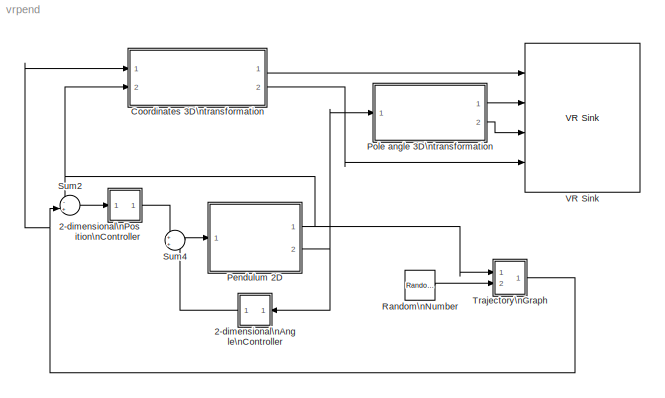
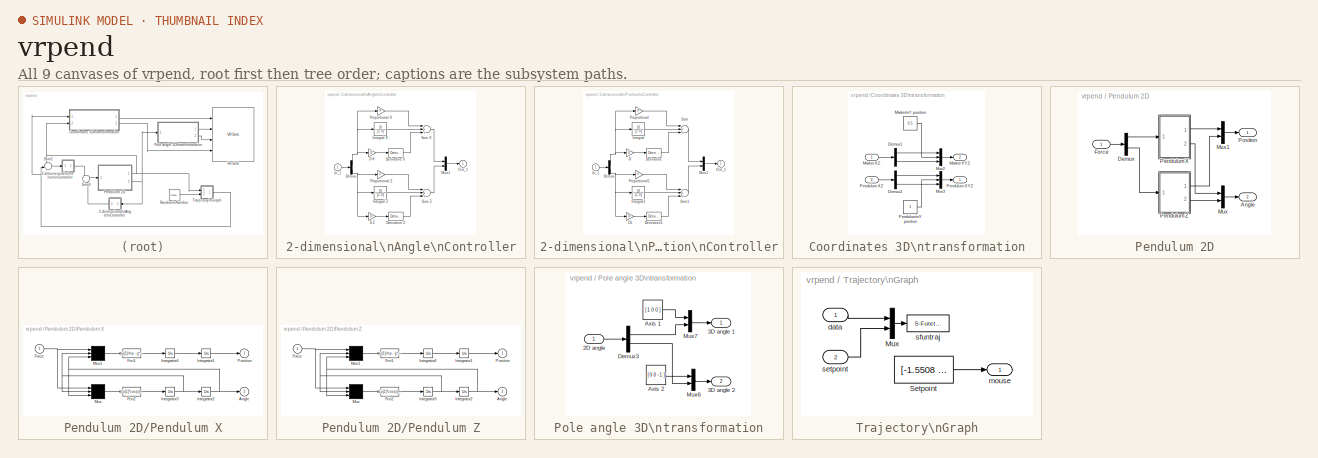
[diagram: thumbnail index - all 9 canvases of the model, root first then tree order]
MODEL vrpend
KIND model
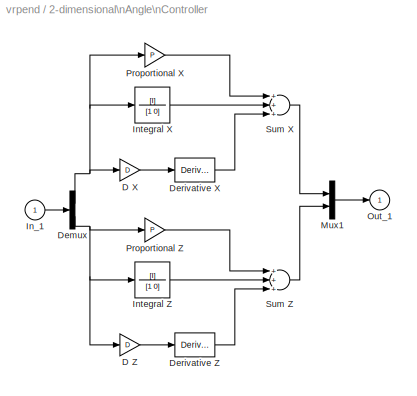
BLOCK [SubSystem] 2-dimensional\nAngle\nController
  EnableExecutionContextPropagation = on
  MaskCallbackString = ||
  MaskDescription = Enter expressions for proportional, integral, and derivative terms.\nP+I/s+Ds
  MaskDisplay = disp('PID')
  MaskEnableString = on,on,on
  MaskHelp = This block implements a PID controller where parameters are entered for the Proportional, Integral and Derivative terms. Unmask this block to see how it works. The derivative term is implemented using a true derivative block.
  MaskIconFrame = on
  MaskIconOpaque = on
  MaskIconRotate = none
  MaskIconUnits = autoscale
  MaskPromptString = Proportional:|Integral:|Derivative:
  MaskStyleString = edit,edit,edit
  MaskTabNameString = ,,
  MaskToolTipString = on,on,on
  MaskTunableValueString = on,on,on
  MaskType = PID Controller
  MaskValueString = 41.6|38.3|27.3
  MaskVarAliasString = ,,
  MaskVariables = P=@1;I=@2;D=@3;
  MaskVisibilityString = on,on,on
  MinAlgLoopOccurrences = off
  Ports = [1, 1]
  TreatAsAtomicUnit = off
BLOCK [Gain] 2-dimensional\nAngle\nController/D X
  Gain = D
BLOCK [Gain] 2-dimensional\nAngle\nController/D Z
  Gain = D
BLOCK [Demux] 2-dimensional\nAngle\nController/Demux
  Outputs = 2
  Ports = [1, 2]
BLOCK [Derivative] 2-dimensional\nAngle\nController/Derivative X
BLOCK [Derivative] 2-dimensional\nAngle\nController/Derivative Z
BLOCK [Inport] 2-dimensional\nAngle\nController/In_1
  IconDisplay = Port number
  LatchInput = off
BLOCK [TransferFcn] 2-dimensional\nAngle\nController/Integral X
  Denominator = [1 0]
  Numerator = [I]
BLOCK [TransferFcn] 2-dimensional\nAngle\nController/Integral Z
  Denominator = [1 0]
  Numerator = [I]
BLOCK [Mux] 2-dimensional\nAngle\nController/Mux1
  DisplayOption = bar
  Inputs = 2
  Ports = [2, 1]
BLOCK [Outport] 2-dimensional\nAngle\nController/Out_1
  IconDisplay = Port number
  InitialOutput = 0
BLOCK [Gain] 2-dimensional\nAngle\nController/Proportional X
  Gain = P
BLOCK [Gain] 2-dimensional\nAngle\nController/Proportional Z
  Gain = P
BLOCK [Sum] 2-dimensional\nAngle\nController/Sum X
  Inputs = +++
  Ports = [3, 1]
BLOCK [Sum] 2-dimensional\nAngle\nController/Sum Z
  Inputs = +++
  Ports = [3, 1]
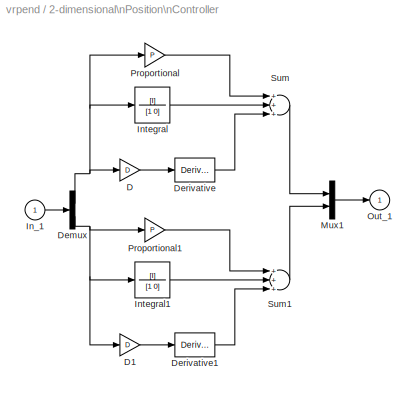
BLOCK [SubSystem] 2-dimensional\nPosition\nController
  EnableExecutionContextPropagation = on
  MaskCallbackString = ||
  MaskDescription = Enter expressions for proportional, integral, and derivative terms.\nP+I/s+Ds
  MaskDisplay = disp('PID')
  MaskEnableString = on,on,on
  MaskHelp = This block implements a PID controller where parameters are entered for the Proportional, Integral and Derivative terms. Unmask this block to see how it works. The derivative term is implemented using a true derivative block.
  MaskIconFrame = on
  MaskIconOpaque = on
  MaskIconRotate = none
  MaskIconUnits = autoscale
  MaskPromptString = Proportional:|Integral:|Derivative:
  MaskStyleString = edit,edit,edit
  MaskTabNameString = ,,
  MaskToolTipString = on,on,on
  MaskTunableValueString = on,on,on
  MaskType = PID Controller
  MaskValueString = -1.681|-0.0133|-0.325
  MaskVarAliasString = ,,
  MaskVariables = P=@1;I=@2;D=@3;
  MaskVisibilityString = on,on,on
  MinAlgLoopOccurrences = off
  Ports = [1, 1]
  TreatAsAtomicUnit = off
BLOCK [Gain] 2-dimensional\nPosition\nController/D
  Gain = D
BLOCK [Gain] 2-dimensional\nPosition\nController/D1
  Gain = D
BLOCK [Demux] 2-dimensional\nPosition\nController/Demux
  Outputs = 2
  Ports = [1, 2]
BLOCK [Derivative] 2-dimensional\nPosition\nController/Derivative
BLOCK [Derivative] 2-dimensional\nPosition\nController/Derivative1
BLOCK [Inport] 2-dimensional\nPosition\nController/In_1
  IconDisplay = Port number
  LatchInput = off
BLOCK [TransferFcn] 2-dimensional\nPosition\nController/Integral
  Denominator = [1 0]
  Numerator = [I]
BLOCK [TransferFcn] 2-dimensional\nPosition\nController/Integral1
  Denominator = [1 0]
  Numerator = [I]
BLOCK [Mux] 2-dimensional\nPosition\nController/Mux1
  DisplayOption = bar
  Inputs = 2
  Ports = [2, 1]
BLOCK [Outport] 2-dimensional\nPosition\nController/Out_1
  IconDisplay = Port number
  InitialOutput = 0
BLOCK [Gain] 2-dimensional\nPosition\nController/Proportional
  Gain = P
BLOCK [Gain] 2-dimensional\nPosition\nController/Proportional1
  Gain = P
BLOCK [Sum] 2-dimensional\nPosition\nController/Sum
  Inputs = +++
  Ports = [3, 1]
BLOCK [Sum] 2-dimensional\nPosition\nController/Sum1
  Inputs = +++
  Ports = [3, 1]
BLOCK [SubSystem] Coordinates 3D\ntransformation
  EnableExecutionContextPropagation = on
  MinAlgLoopOccurrences = off
  Ports = [2, 2]
  TreatAsAtomicUnit = off
BLOCK [Demux] Coordinates 3D\ntransformation/Demux1
  Outputs = 2
  Ports = [1, 2]
BLOCK [Demux] Coordinates 3D\ntransformation/Demux2
  Outputs = 2
  Ports = [1, 2]
BLOCK [Outport] Coordinates 3D\ntransformation/Marker XYZ
  IconDisplay = Port number
  Port = 2
BLOCK [Inport] Coordinates 3D\ntransformation/Marker XZ
  IconDisplay = Port number
  LatchInput = off
BLOCK [Constant] Coordinates 3D\ntransformation/Marker\nY position
  Value = 0.5
BLOCK [Mux] Coordinates 3D\ntransformation/Mux2
  DisplayOption = bar
  Inputs = 3
  Ports = [3, 1]
BLOCK [Mux] Coordinates 3D\ntransformation/Mux3
  DisplayOption = bar
  Inputs = 3
  Ports = [3, 1]
BLOCK [Outport] Coordinates 3D\ntransformation/Pendulum XYZ
  IconDisplay = Port number
BLOCK [Inport] Coordinates 3D\ntransformation/Pendulum XZ
  IconDisplay = Port number
  LatchInput = off
  Port = 2
BLOCK [Constant] Coordinates 3D\ntransformation/Pendulum\nY position
BLOCK [SubSystem] Pendulum 2D
  EnableExecutionContextPropagation = on
  MaskCallbackString = |||
  MaskDescription = Look under mask to see dynamics
  MaskDisplay = plot([-10 10],[0 0],[-2 -2 2 2],[0 1 1 0],[0 -2],[1 5])
  MaskEnableString = on,on,on,on
  MaskHelp = Nonlinear dynamics of inverted pendulum.
  MaskIconFrame = on
  MaskIconOpaque = off
  MaskIconRotate = none
  MaskIconUnits = autoscale
  MaskPromptString = Mass of cart (kg):|Mass of pendulum (kg):|Distance to pendulum center of mass(m):|Acceleration of gravity (m/s^2):
  MaskStyleString = edit,edit,edit,edit
  MaskTabNameString = ,,,
  MaskToolTipString = on,on,on,on
  MaskTunableValueString = on,on,on,on
  MaskType = Inverted pendulum
  MaskValueString = 0.5|1|0.5|9.80665
  MaskVarAliasString = ,,,
  MaskVariables = mc=@1;mp=@2;l=@3;g=@4;
  MaskVisibilityString = on,on,on,on
  MinAlgLoopOccurrences = off
  Ports = [1, 2]
  TreatAsAtomicUnit = off
BLOCK [Outport] Pendulum 2D/Angle
  IconDisplay = Port number
  Port = 2
BLOCK [Demux] Pendulum 2D/Demux
  Outputs = 2
  Ports = [1, 2]
BLOCK [Inport] Pendulum 2D/Force
  IconDisplay = Port number
  LatchInput = off
BLOCK [Mux] Pendulum 2D/Mux
  DisplayOption = bar
  Inputs = 2
  Ports = [2, 1]
BLOCK [Mux] Pendulum 2D/Mux1
  DisplayOption = bar
  Inputs = 2
  Ports = [2, 1]
BLOCK [SubSystem] Pendulum 2D/Pendulum X
  EnableExecutionContextPropagation = on
  MaskCallbackString = |||
  MaskDescription = Look under mask to see dynamics
  MaskEnableString = on,on,on,on
  MaskHelp = Nonlinear dynamics of inverted pendulum.
  MaskIconFrame = on
  MaskIconOpaque = on
  MaskIconRotate = none
  MaskIconUnits = autoscale
  MaskPromptString = Mass of cart (kg):|Mass of pendulum (kg):|Distance to pendulum center of mass(m):|Acceleration of gravity (m/s^2):
  MaskStyleString = edit,edit,edit,edit
  MaskTabNameString = ,,,
  MaskToolTipString = on,on,on,on
  MaskTunableValueString = on,on,on,on
  MaskType = Inverted pendulum
  MaskValueString = mc|mp|l|g
  MaskVarAliasString = ,,,
  MaskVariables = mc=@1;mp=@2;l=@3;g=@4;
  MaskVisibilityString = on,on,on,on
  MinAlgLoopOccurrences = off
  Ports = [1, 2]
  TreatAsAtomicUnit = off
BLOCK [Outport] Pendulum 2D/Pendulum X/Angle
  IconDisplay = Port number
  InitialOutput = 0
  Port = 2
BLOCK [Fcn] Pendulum 2D/Pendulum X/Fcn1
  Expr = (u[1]/mp - g*sin(u[3])*cos(u[3]) + l*power(u[2],2)*sin(u[3]))/(mc/mp + power(sin(u[3]),2))
BLOCK [Fcn] Pendulum 2D/Pendulum X/Fcn2
  Expr = (-u[1]*cos(u[3])/mp + (mc+mp)*g*sin(u[3])/mp - l*power(u[2],2)*sin(u[3])*cos(u[3]))/(l*(mc/mp + power(sin(u[3]),2)))
BLOCK [Inport] Pendulum 2D/Pendulum X/Force
  IconDisplay = Port number
  LatchInput = off
BLOCK [Integrator] Pendulum 2D/Pendulum X/Integrator1
  LowerSaturationLimit = -Inf
  Ports = [1, 1]
  UpperSaturationLimit = Inf
  ZeroCross = off
BLOCK [Integrator] Pendulum 2D/Pendulum X/Integrator2
  LowerSaturationLimit = -Inf
  Ports = [1, 1]
  UpperSaturationLimit = Inf
  ZeroCross = off
BLOCK [Integrator] Pendulum 2D/Pendulum X/Integrator3
  LowerSaturationLimit = -Inf
  Ports = [1, 1]
  UpperSaturationLimit = Inf
  ZeroCross = off
BLOCK [Integrator] Pendulum 2D/Pendulum X/Integrator4
  LowerSaturationLimit = -Inf
  Ports = [1, 1]
  UpperSaturationLimit = Inf
  ZeroCross = off
BLOCK [Mux] Pendulum 2D/Pendulum X/Mux
  Inputs = 3
  Ports = [3, 1]
BLOCK [Mux] Pendulum 2D/Pendulum X/Mux1
  Inputs = 3
  Ports = [3, 1]
BLOCK [Outport] Pendulum 2D/Pendulum X/Position
  IconDisplay = Port number
  InitialOutput = 0
BLOCK [SubSystem] Pendulum 2D/Pendulum Z
  EnableExecutionContextPropagation = on
  MaskCallbackString = |||
  MaskDescription = Look under mask to see dynamics
  MaskEnableString = on,on,on,on
  MaskHelp = Nonlinear dynamics of inverted pendulum.
  MaskIconFrame = on
  MaskIconOpaque = on
  MaskIconRotate = none
  MaskIconUnits = autoscale
  MaskPromptString = Mass of cart (kg):|Mass of pendulum (kg):|Distance to pendulum center of mass(m):|Acceleration of gravity (m/s^2):
  MaskStyleString = edit,edit,edit,edit
  MaskTabNameString = ,,,
  MaskToolTipString = on,on,on,on
  MaskTunableValueString = on,on,on,on
  MaskType = Inverted pendulum
  MaskValueString = 0.5|1|0.5|9.8
  MaskVarAliasString = ,,,
  MaskVariables = mc=@1;mp=@2;l=@3;g=@4;
  MaskVisibilityString = on,on,on,on
  MinAlgLoopOccurrences = off
  Ports = [1, 2]
  TreatAsAtomicUnit = off
BLOCK [Outport] Pendulum 2D/Pendulum Z/Angle
  IconDisplay = Port number
  InitialOutput = 0
  Port = 2
BLOCK [Fcn] Pendulum 2D/Pendulum Z/Fcn1
  Expr = (u[1]/mp - g*sin(u[3])*cos(u[3]) + l*power(u[2],2)*sin(u[3]))/(mc/mp + power(sin(u[3]),2))
BLOCK [Fcn] Pendulum 2D/Pendulum Z/Fcn2
  Expr = (-u[1]*cos(u[3])/mp + (mc+mp)*g*sin(u[3])/mp - l*power(u[2],2)*sin(u[3])*cos(u[3]))/(l*(mc/mp + power(sin(u[3]),2)))
BLOCK [Inport] Pendulum 2D/Pendulum Z/Force
  IconDisplay = Port number
  LatchInput = off
BLOCK [Integrator] Pendulum 2D/Pendulum Z/Integrator1
  LowerSaturationLimit = -Inf
  Ports = [1, 1]
  UpperSaturationLimit = Inf
  ZeroCross = off
BLOCK [Integrator] Pendulum 2D/Pendulum Z/Integrator2
  LowerSaturationLimit = -Inf
  Ports = [1, 1]
  UpperSaturationLimit = Inf
  ZeroCross = off
BLOCK [Integrator] Pendulum 2D/Pendulum Z/Integrator3
  LowerSaturationLimit = -Inf
  Ports = [1, 1]
  UpperSaturationLimit = Inf
  ZeroCross = off
BLOCK [Integrator] Pendulum 2D/Pendulum Z/Integrator4
  LowerSaturationLimit = -Inf
  Ports = [1, 1]
  UpperSaturationLimit = Inf
  ZeroCross = off
BLOCK [Mux] Pendulum 2D/Pendulum Z/Mux
  Inputs = 3
  Ports = [3, 1]
BLOCK [Mux] Pendulum 2D/Pendulum Z/Mux1
  Inputs = 3
  Ports = [3, 1]
BLOCK [Outport] Pendulum 2D/Pendulum Z/Position
  IconDisplay = Port number
  InitialOutput = 0
BLOCK [Outport] Pendulum 2D/Position
  IconDisplay = Port number
BLOCK [SubSystem] Pole angle 3D\ntransformation
  EnableExecutionContextPropagation = on
  MinAlgLoopOccurrences = off
  Ports = [1, 2]
  TreatAsAtomicUnit = off
BLOCK [Inport] Pole angle 3D\ntransformation/2D angle
  IconDisplay = Port number
  LatchInput = off
BLOCK [Outport] Pole angle 3D\ntransformation/3D angle 1
  IconDisplay = Port number
BLOCK [Outport] Pole angle 3D\ntransformation/3D angle 2
  IconDisplay = Port number
  Port = 2
BLOCK [Constant] Pole angle 3D\ntransformation/Axis 1
  Value = [ 1 0 0 ]
BLOCK [Constant] Pole angle 3D\ntransformation/Axis 2
  Value = [ 0 0 -1 ]
BLOCK [Demux] Pole angle 3D\ntransformation/Demux3
  Outputs = 2
  Ports = [1, 2]
BLOCK [Mux] Pole angle 3D\ntransformation/Mux6
  DisplayOption = bar
  Inputs = 2
  Ports = [2, 1]
BLOCK [Mux] Pole angle 3D\ntransformation/Mux7
  DisplayOption = bar
  Inputs = 2
  Ports = [2, 1]
BLOCK [RandomNumber] Random\nNumber
  Mean = [0 0]
  SampleTime = 3
  Seed = [0 5]
  Variance = [5 5]
BLOCK [Sum] Sum2
  IconShape = round
  Inputs = -+
  Ports = [2, 1]
BLOCK [Sum] Sum4
  IconShape = round
  Ports = [2, 1]
BLOCK [SubSystem] Trajectory\nGraph
  CopyFcn = sfuntraj([],[],[],'CopyBlock')
  DeleteFcn = sfuntraj([],[],[],'DeleteBlock')
  EnableExecutionContextPropagation = on
  LoadFcn = sfuntraj([],[],[],'LoadBlock')
  MaskCallbackString = |||||
  MaskDescription = Trajectory scope using MATLAB graph window. Enter plotting ranges.
  MaskDisplay = plot([.05 .95 .95 .05 .05],[.45 .45 .95 .95 .45], 0.5+cos(0:0.1:2*pi)*0.3,0.7+sin(0:0.1:2*pi)*0.2)
  MaskEnableString = on,on,on,on,on,on
  MaskHelp = This block can be used to explore limit cycles. Look at the m-file sfuntraj.m to see how it works.
  MaskIconFrame = on
  MaskIconOpaque = on
  MaskIconRotate = none
  MaskIconUnits = normalized
  MaskPromptString = x-min:|x-max:|y-min:|y-max:|Sample time:|Setpoint mode
  MaskSelfModifiable = on
  MaskStyleString = edit,edit,edit,edit,edit,popup(Mouse|Input signal|VR sensor)
  MaskTabNameString = ,,,,,
  MaskToolTipString = on,on,on,on,on,on
  MaskTunableValueString = on,on,on,on,on,on
  MaskType = Trajectory scope.
  MaskValueString = -10|10|-10|10|0.2|VR sensor
  MaskVarAliasString = ,,,,,
  MaskVariables = xmin=@1;xmax=@2;ymin=@3;ymax=@4;Ts=@5;mode=@6;
  MaskVisibilityString = on,on,on,on,on,on
  MinAlgLoopOccurrences = off
  NameChangeFcn = sfuntraj([],[],[],'NameChange')
  Ports = [2, 1]
  StartFcn = sfuntraj([],[],[],'Start')
  StopFcn = sfuntraj([],[],[],'Stop')
  TreatAsAtomicUnit = off
BLOCK [Mux] Trajectory\nGraph/Mux
  DisplayOption = bar
  Inputs = 2
  Ports = [2, 1]
BLOCK [Constant] Trajectory\nGraph/Setpoint
  Value = [-1.5508    -0.33419]
BLOCK [Inport] Trajectory\nGraph/data
  IconDisplay = Port number
  LatchInput = off
BLOCK [Outport] Trajectory\nGraph/mouse
  IconDisplay = Port number
BLOCK [Inport] Trajectory\nGraph/setpoint
  IconDisplay = Port number
  LatchInput = off
  Port = 2
BLOCK [S-Function] Trajectory\nGraph/sfuntraj
  FunctionName = sfuntraj
  Parameters = [xmin xmax ymin ymax], Ts, mode
  Ports = [1]
BLOCK [Reference] VR Sink  REF=vrlib/VR Sink
  AutoView = on
  FieldsWritten = Pendulum.translation.3.1.double#Pole1.rotation.4.1.double#Pole2.rotation.4.1.double#Marker.translation.3.1.double
  Ports = [4]
  RemoteChange = off
  RemoteView = off
  SampleTime = 0.2
  SourceBlock = vrlib/VR Sink
  SourceType = Virtual Reality Sink
  ViewEnable = on
  WorldFileName = vrpend.wrl
LINE 2-dimensional\nAngle\nController/D X:1 -> 2-dimensional\nAngle\nController/Derivative X:1
LINE 2-dimensional\nAngle\nController/D Z:1 -> 2-dimensional\nAngle\nController/Derivative Z:1
NET 2-dimensional\nAngle\nController/Demux:1 -> 2-dimensional\nAngle\nController/D X:1, 2-dimensional\nAngle\nController/Integral X:1, 2-dimensional\nAngle\nController/Proportional X:1
NET 2-dimensional\nAngle\nController/Demux:2 -> 2-dimensional\nAngle\nController/D Z:1, 2-dimensional\nAngle\nController/Integral Z:1, 2-dimensional\nAngle\nController/Proportional Z:1
LINE 2-dimensional\nAngle\nController/Derivative X:1 -> 2-dimensional\nAngle\nController/Sum X:3
LINE 2-dimensional\nAngle\nController/Derivative Z:1 -> 2-dimensional\nAngle\nController/Sum Z:3
LINE 2-dimensional\nAngle\nController/In_1:1 -> 2-dimensional\nAngle\nController/Demux:1
LINE 2-dimensional\nAngle\nController/Integral X:1 -> 2-dimensional\nAngle\nController/Sum X:2
LINE 2-dimensional\nAngle\nController/Integral Z:1 -> 2-dimensional\nAngle\nController/Sum Z:2
LINE 2-dimensional\nAngle\nController/Mux1:1 -> 2-dimensional\nAngle\nController/Out_1:1
LINE 2-dimensional\nAngle\nController/Proportional X:1 -> 2-dimensional\nAngle\nController/Sum X:1
LINE 2-dimensional\nAngle\nController/Proportional Z:1 -> 2-dimensional\nAngle\nController/Sum Z:1
LINE 2-dimensional\nAngle\nController/Sum X:1 -> 2-dimensional\nAngle\nController/Mux1:1
LINE 2-dimensional\nAngle\nController/Sum Z:1 -> 2-dimensional\nAngle\nController/Mux1:2
LINE 2-dimensional\nAngle\nController:1 -> Sum4:2
LINE 2-dimensional\nPosition\nController/D1:1 -> 2-dimensional\nPosition\nController/Derivative1:1
LINE 2-dimensional\nPosition\nController/D:1 -> 2-dimensional\nPosition\nController/Derivative:1
NET 2-dimensional\nPosition\nController/Demux:1 -> 2-dimensional\nPosition\nController/D:1, 2-dimensional\nPosition\nController/Integral:1, 2-dimensional\nPosition\nController/Proportional:1
NET 2-dimensional\nPosition\nController/Demux:2 -> 2-dimensional\nPosition\nController/D1:1, 2-dimensional\nPosition\nController/Integral1:1, 2-dimensional\nPosition\nController/Proportional1:1
LINE 2-dimensional\nPosition\nController/Derivative1:1 -> 2-dimensional\nPosition\nController/Sum1:3
LINE 2-dimensional\nPosition\nController/Derivative:1 -> 2-dimensional\nPosition\nController/Sum:3
LINE 2-dimensional\nPosition\nController/In_1:1 -> 2-dimensional\nPosition\nController/Demux:1
LINE 2-dimensional\nPosition\nController/Integral1:1 -> 2-dimensional\nPosition\nController/Sum1:2
LINE 2-dimensional\nPosition\nController/Integral:1 -> 2-dimensional\nPosition\nController/Sum:2
LINE 2-dimensional\nPosition\nController/Mux1:1 -> 2-dimensional\nPosition\nController/Out_1:1
LINE 2-dimensional\nPosition\nController/Proportional1:1 -> 2-dimensional\nPosition\nController/Sum1:1
LINE 2-dimensional\nPosition\nController/Proportional:1 -> 2-dimensional\nPosition\nController/Sum:1
LINE 2-dimensional\nPosition\nController/Sum1:1 -> 2-dimensional\nPosition\nController/Mux1:2
LINE 2-dimensional\nPosition\nController/Sum:1 -> 2-dimensional\nPosition\nController/Mux1:1
LINE 2-dimensional\nPosition\nController:1 -> Sum4:1
LINE Coordinates 3D\ntransformation/Demux1:1 -> Coordinates 3D\ntransformation/Mux2:1
LINE Coordinates 3D\ntransformation/Demux1:2 -> Coordinates 3D\ntransformation/Mux2:3
LINE Coordinates 3D\ntransformation/Demux2:1 -> Coordinates 3D\ntransformation/Mux3:1
LINE Coordinates 3D\ntransformation/Demux2:2 -> Coordinates 3D\ntransformation/Mux3:3
LINE Coordinates 3D\ntransformation/Marker XZ:1 -> Coordinates 3D\ntransformation/Demux1:1
LINE Coordinates 3D\ntransformation/Marker\nY position:1 -> Coordinates 3D\ntransformation/Mux2:2
LINE Coordinates 3D\ntransformation/Mux2:1 -> Coordinates 3D\ntransformation/Marker XYZ:1
LINE Coordinates 3D\ntransformation/Mux3:1 -> Coordinates 3D\ntransformation/Pendulum XYZ:1
LINE Coordinates 3D\ntransformation/Pendulum XZ:1 -> Coordinates 3D\ntransformation/Demux2:1
LINE Coordinates 3D\ntransformation/Pendulum\nY position:1 -> Coordinates 3D\ntransformation/Mux3:2
LINE Coordinates 3D\ntransformation:1 -> VR Sink:1
LINE Coordinates 3D\ntransformation:2 -> VR Sink:4
LINE Pendulum 2D/Demux:1 -> Pendulum 2D/Pendulum X:1
LINE Pendulum 2D/Demux:2 -> Pendulum 2D/Pendulum Z:1
LINE Pendulum 2D/Force:1 -> Pendulum 2D/Demux:1
LINE Pendulum 2D/Mux1:1 -> Pendulum 2D/Position:1
LINE Pendulum 2D/Mux:1 -> Pendulum 2D/Angle:1
LINE Pendulum 2D/Pendulum X/Fcn1:1 -> Pendulum 2D/Pendulum X/Integrator4:1
LINE Pendulum 2D/Pendulum X/Fcn2:1 -> Pendulum 2D/Pendulum X/Integrator3:1
NET Pendulum 2D/Pendulum X/Force:1 -> Pendulum 2D/Pendulum X/Mux1:1, Pendulum 2D/Pendulum X/Mux:1
LINE Pendulum 2D/Pendulum X/Integrator1:1 -> Pendulum 2D/Pendulum X/Position:1
NET Pendulum 2D/Pendulum X/Integrator2:1 -> Pendulum 2D/Pendulum X/Angle:1, Pendulum 2D/Pendulum X/Mux1:3, Pendulum 2D/Pendulum X/Mux:3
NET Pendulum 2D/Pendulum X/Integrator3:1 -> Pendulum 2D/Pendulum X/Integrator2:1, Pendulum 2D/Pendulum X/Mux1:2, Pendulum 2D/Pendulum X/Mux:2
LINE Pendulum 2D/Pendulum X/Integrator4:1 -> Pendulum 2D/Pendulum X/Integrator1:1
LINE Pendulum 2D/Pendulum X/Mux1:1 -> Pendulum 2D/Pendulum X/Fcn1:1
LINE Pendulum 2D/Pendulum X/Mux:1 -> Pendulum 2D/Pendulum X/Fcn2:1
LINE Pendulum 2D/Pendulum X:1 -> Pendulum 2D/Mux1:1
LINE Pendulum 2D/Pendulum X:2 -> Pendulum 2D/Mux:1
LINE Pendulum 2D/Pendulum Z/Fcn1:1 -> Pendulum 2D/Pendulum Z/Integrator4:1
LINE Pendulum 2D/Pendulum Z/Fcn2:1 -> Pendulum 2D/Pendulum Z/Integrator3:1
NET Pendulum 2D/Pendulum Z/Force:1 -> Pendulum 2D/Pendulum Z/Mux1:1, Pendulum 2D/Pendulum Z/Mux:1
LINE Pendulum 2D/Pendulum Z/Integrator1:1 -> Pendulum 2D/Pendulum Z/Position:1
NET Pendulum 2D/Pendulum Z/Integrator2:1 -> Pendulum 2D/Pendulum Z/Angle:1, Pendulum 2D/Pendulum Z/Mux1:3, Pendulum 2D/Pendulum Z/Mux:3
NET Pendulum 2D/Pendulum Z/Integrator3:1 -> Pendulum 2D/Pendulum Z/Integrator2:1, Pendulum 2D/Pendulum Z/Mux1:2, Pendulum 2D/Pendulum Z/Mux:2
LINE Pendulum 2D/Pendulum Z/Integrator4:1 -> Pendulum 2D/Pendulum Z/Integrator1:1
LINE Pendulum 2D/Pendulum Z/Mux1:1 -> Pendulum 2D/Pendulum Z/Fcn1:1
LINE Pendulum 2D/Pendulum Z/Mux:1 -> Pendulum 2D/Pendulum Z/Fcn2:1
LINE Pendulum 2D/Pendulum Z:1 -> Pendulum 2D/Mux1:2
LINE Pendulum 2D/Pendulum Z:2 -> Pendulum 2D/Mux:2
NET Pendulum 2D:1 -> Coordinates 3D\ntransformation:2, Sum2:1, Trajectory\nGraph:1
NET Pendulum 2D:2 -> 2-dimensional\nAngle\nController:1, Pole angle 3D\ntransformation:1
LINE Pole angle 3D\ntransformation/2D angle:1 -> Pole angle 3D\ntransformation/Demux3:1
LINE Pole angle 3D\ntransformation/Axis 1:1 -> Pole angle 3D\ntransformation/Mux7:1
LINE Pole angle 3D\ntransformation/Axis 2:1 -> Pole angle 3D\ntransformation/Mux6:1
LINE Pole angle 3D\ntransformation/Demux3:1 -> Pole angle 3D\ntransformation/Mux7:2
LINE Pole angle 3D\ntransformation/Demux3:2 -> Pole angle 3D\ntransformation/Mux6:2
LINE Pole angle 3D\ntransformation/Mux6:1 -> Pole angle 3D\ntransformation/3D angle 2:1
LINE Pole angle 3D\ntransformation/Mux7:1 -> Pole angle 3D\ntransformation/3D angle 1:1
LINE Pole angle 3D\ntransformation:1 -> VR Sink:2
LINE Pole angle 3D\ntransformation:2 -> VR Sink:3
LINE Random\nNumber:1 -> Trajectory\nGraph:2
LINE Sum2:1 -> 2-dimensional\nPosition\nController:1
LINE Sum4:1 -> Pendulum 2D:1
LINE Trajectory\nGraph/Mux:1 -> Trajectory\nGraph/sfuntraj:1
LINE Trajectory\nGraph/Setpoint:1 -> Trajectory\nGraph/mouse:1
LINE Trajectory\nGraph/data:1 -> Trajectory\nGraph/Mux:1
LINE Trajectory\nGraph/setpoint:1 -> Trajectory\nGraph/Mux:2
NET Trajectory\nGraph:1 -> Coordinates 3D\ntransformation:1, Sum2:2
note: NET lines group one-source signal fan-out (src -> all destinations, sorted); 1:1 wires keep LINE
